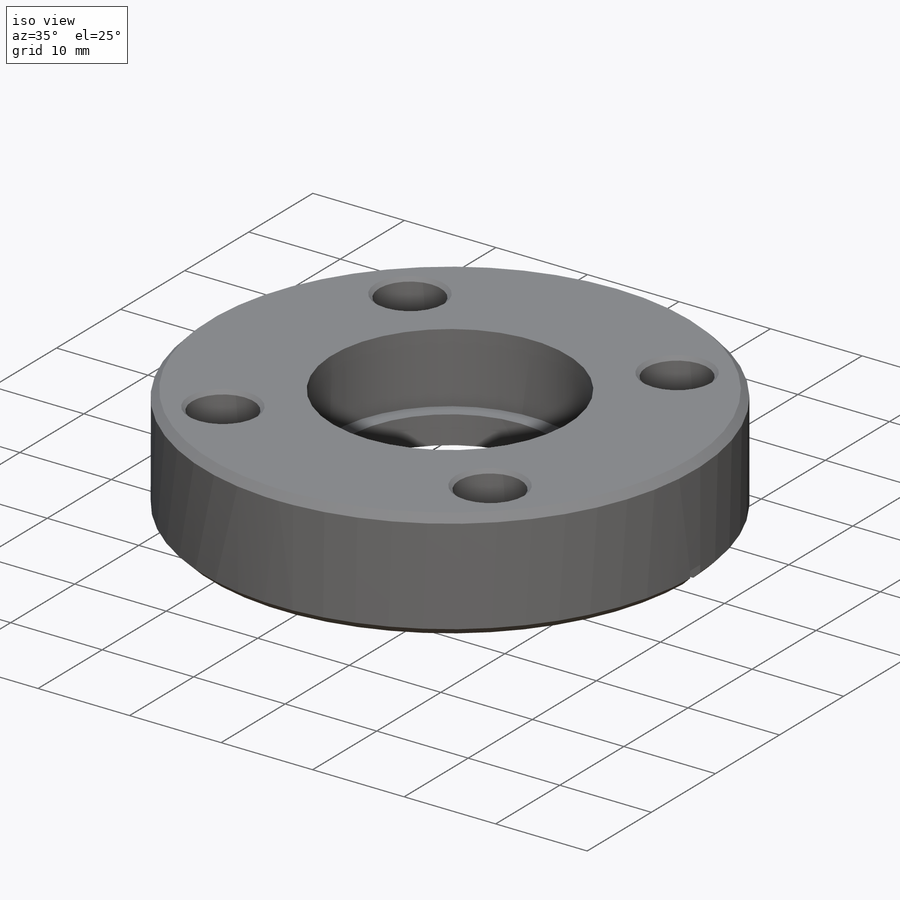
[diagram: iso view]
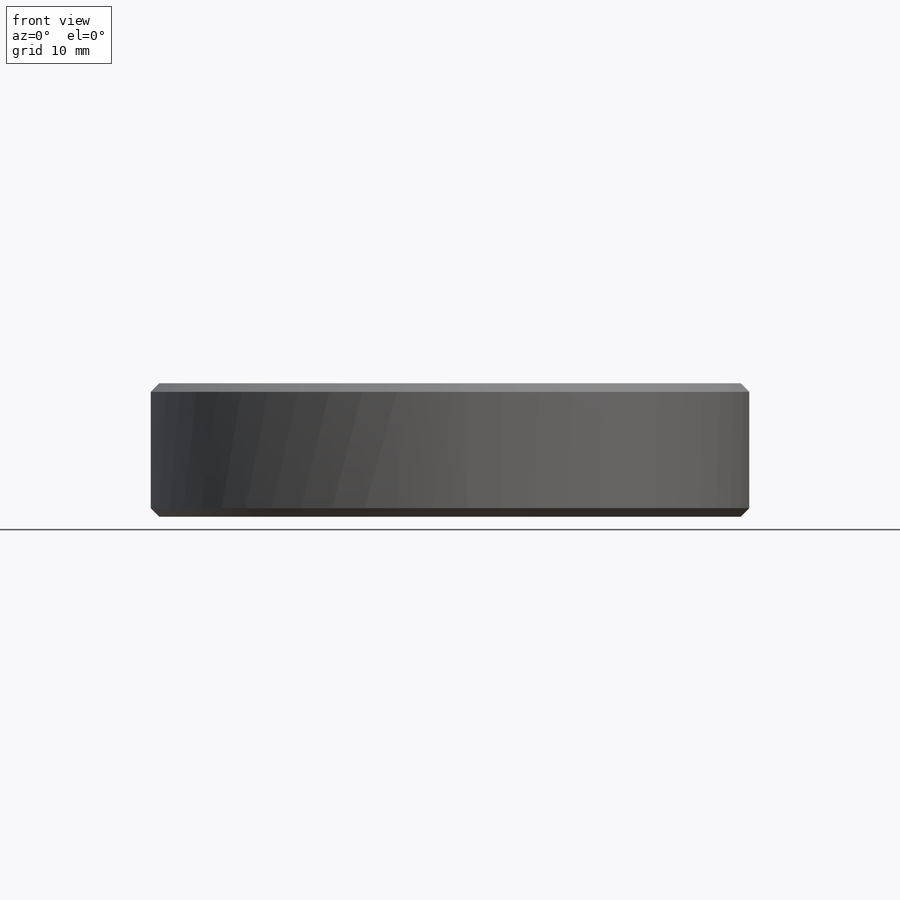
[diagram: front view]
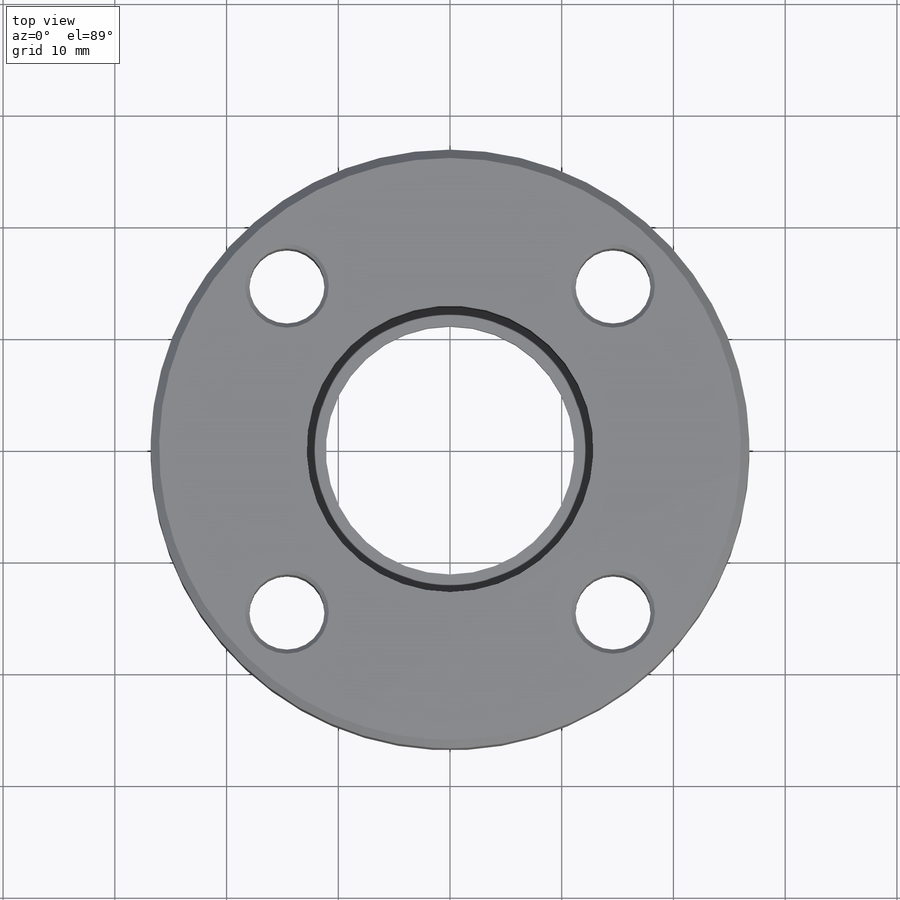
[diagram: top view]
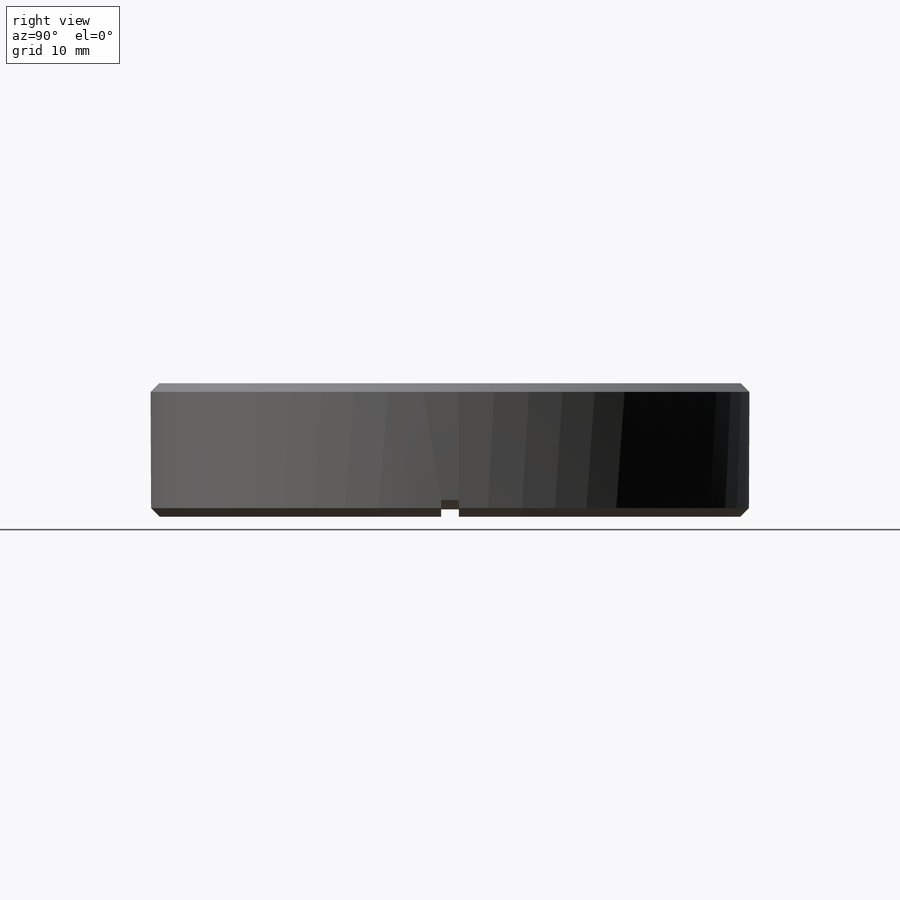
[diagram: right view]
SOLIDWORKS PART (.sldprt)
format: sldprt  version: not decoded by parser v0  size: 238,080 bytes
history: native  units: mm
features: sketch x5, cut_extrude x3, chamfer x2, material x1, extrude x1, cut_revolve x1, pattern_circular x1, mirror x1 (+13 scaffold rows collapsed)
feature tree (28):
  scaffold x13  (default folders/planes/origin — collapsed)
  material  "Material <not specified>"
  sketch  "Sketch1"  dims[D1=53.594mm D2=22.225mm]
  extrude  "Boss-Extrude1"  Depth=11.938mm
  sketch  "Sketch2"  dims[D1=25.654mm]
  cut_extrude  "Cut-Extrude1"  Depth=7.62mm
  chamfer  "Chamfer1"  Distance=0.762mm Angle=45deg
  sketch  "Sketch3"  dims[D1=16.51mm D2=13.843mm D3=1.2446mm D4=0.6096mm D5=1.27mm]
  cut_revolve  "Cut-Revolve1"  Angle=360deg
  sketch  "Sketch4"  dims[c1.D1=6.731mm c1.D2=20.6375mm c1.D3=20.6375mm c1.D4=~14.333151mm c2.D4=45.0deg]
  cut_extrude  "Cut-Extrude2"  [1 undecoded]
  chamfer  "Chamfer2"  Distance=0.381mm Angle=45deg
  pattern_circular  "CirPattern1"  Count=4 Angle=90deg
  sketch  "Sketch5"  dims[c1.D1=0.1mm c1.D2=26.797mm c2.D2=3.0deg c2.D3=15.875mm c2.D4=28.575mm]
  cut_extrude  "Cut-Extrude5"  Depth=1.5875mm
  mirror  "Mirror1"
decode coverage: 12 of 14 modeling features carry decoded parameters
note: ~ marks probable driven/reference dimensions
note: 1 parameter value undecoded
note: suppression state not decoded; provenance and decode notes live in map.json
